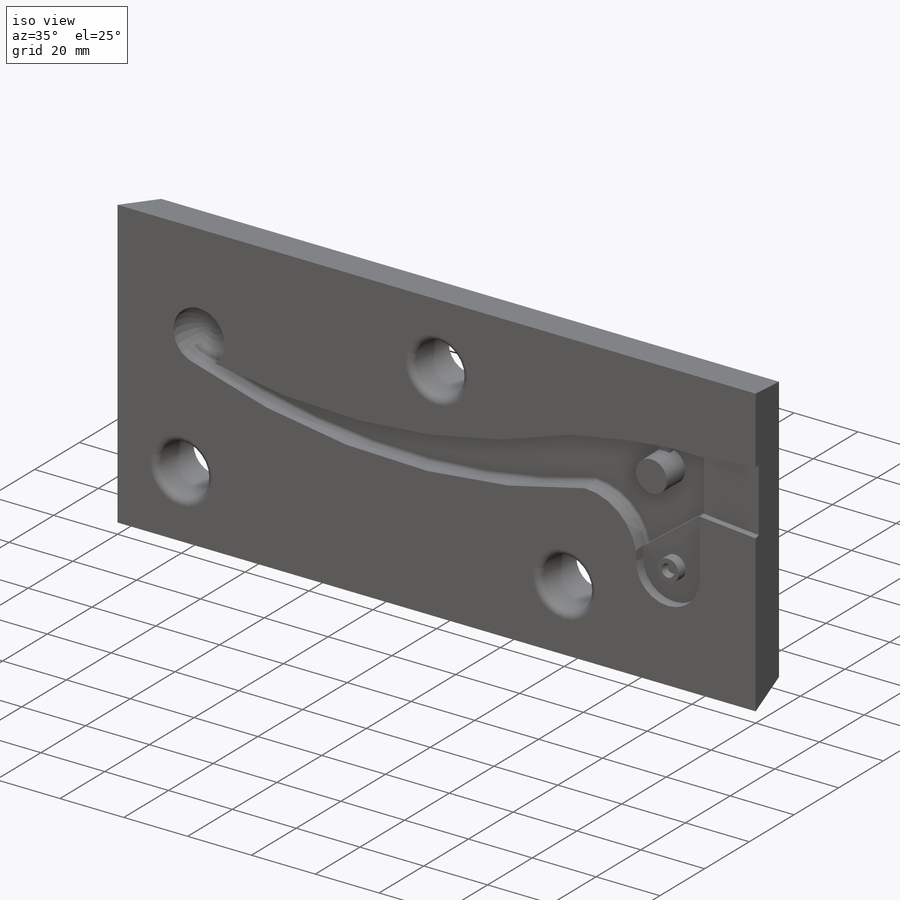
[diagram: iso view]
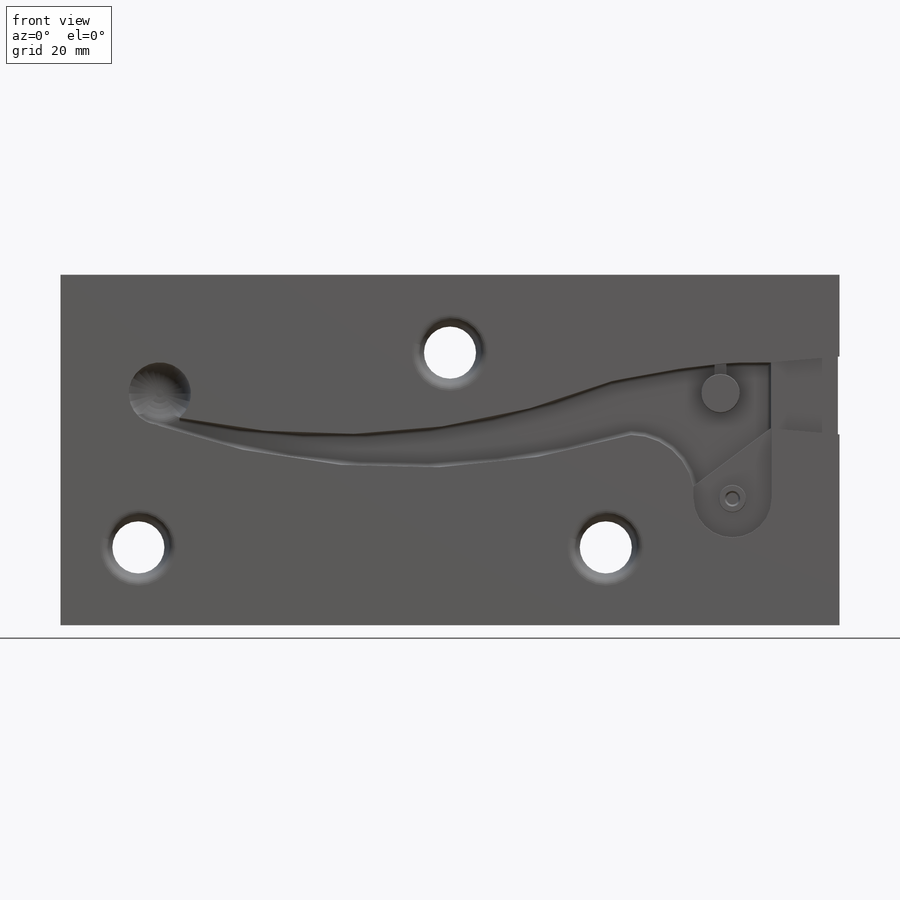
[diagram: front view]
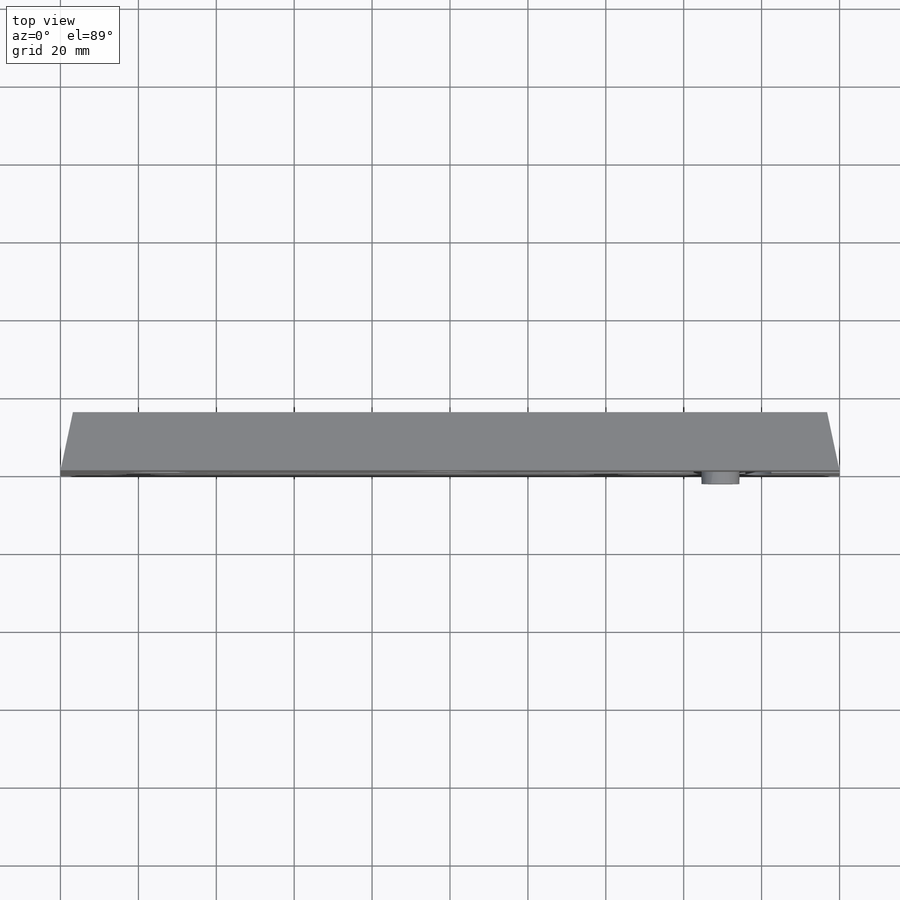
[diagram: top view]
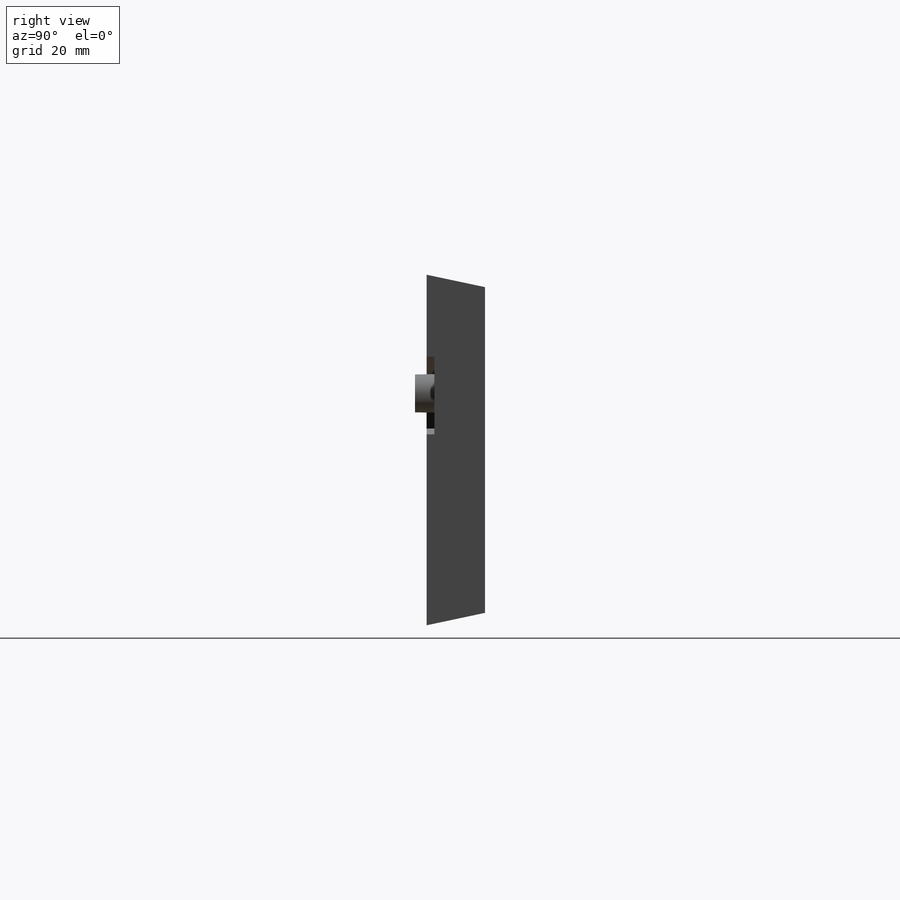
[diagram: right view]
SOLIDWORKS PART (.sldprt)
format: sldprt  version: not decoded by parser v0  size: 454,144 bytes
history: native  units: mm
features: sketch x13, cut_extrude x7, fillet x7, plane x6, extrude x4, material x1 (+11 scaffold rows collapsed)
feature tree (49):
  scaffold x11  (default folders/planes/origin — collapsed)
  material  "Material <not specified>"
  sketch  "badane asli ghaleb"  dims[D1=~16.339441mm]
  sketch  "Sketch2"  dims[D1=~17.920904mm]
  sketch  "daste asli"  dims[c1.D1=~9.358189mm c1.D3=10.0mm c2.D1=9.0mm c2.D2=13.0mm c2.D4=9.0mm c2.D3=13.0mm c3.D1=13.0mm c3.D2=~8.390123mm]
  sketch  "jaie pich"
  extrude  "Extrude1"  Depth=15mm
  cut_extrude  "Cut-Extrude1"  Depth=5mm
  cut_extrude  "Cut-Extrude3"  Depth=3mm
  plane  "Plane2"  Offset=100mm
  plane  "Plane3"  Offset=0mm
  sketch  "Sketch10"  dims[D1=~3.743105mm]
  extrude  "Extrude2"  Depth=3mm
  plane  "Plane4"  Offset=0mm
  sketch  "Sketch11"  dims[D1=~1.465537mm]
  cut_extrude  "Cut-Extrude5"  Depth=2mm
  sketch  "gerdi tah dasteh"
  cut_extrude  "Cut-Extrude6"  Depth=8mm
  fillet  "Fillet3"  Radius=7mm
  sketch  "Sketch16"
  cut_extrude  "Cut-Extrude7"  Depth=5mm
  fillet  "Fillet4"  Radius=3mm
  fillet  "Fillet5"  Radius=1mm
  fillet  "Fillet6"  Radius=21mm
  fillet  "Fillet7"  Radius=1mm
  fillet  "Fillet8"  Radius=1mm
  plane  "Plane5"  Offset=0mm
  plane  "Plane6"  Offset=0mm
  sketch  "Sketch17"
  sketch  "Sketch18"  dims[c1.D1=1.5mm c1.D2=1.5mm c2.D1=~16.833848mm]
  cut_extrude  "Cut-Extrude9"  Depth=2mm
  sketch  "Sketch20"  dims[D3=10.0mm D1=13.0mm D2=9.0mm]
  extrude  "Boss-Extrude1"  Depth=8mm
  plane  "Plane7"  Offset=0mm
  sketch  "Sketch22"  dims[c1.D1=2.0mm c1.D2=2.0mm c2.D1=1.5mm]
  extrude  "Boss-Extrude2"  Depth=2mm
  sketch  "Sketch24"  dims[c1.D3=~9.796694mm c1.D4=~7.927876mm c1.D5=~8.137133mm c1.D1=20.0mm c1.D2=40.0mm c2.D3=20.0mm c2.D4=20.0mm]
  cut_extrude  "Cut-Extrude10"  Depth=15mm
  fillet  "Fillet9"  Radius=2mm
decode coverage: 27 of 31 modeling features carry decoded parameters
note: ~ marks probable driven/reference dimensions
note: suppression state not decoded; provenance and decode notes live in map.json
